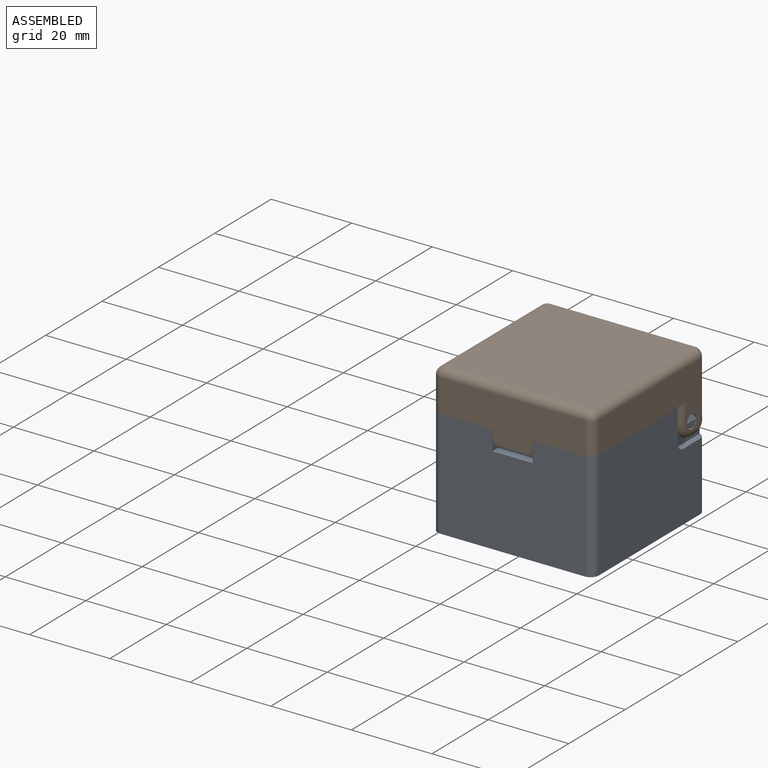
[diagram: assembled view]
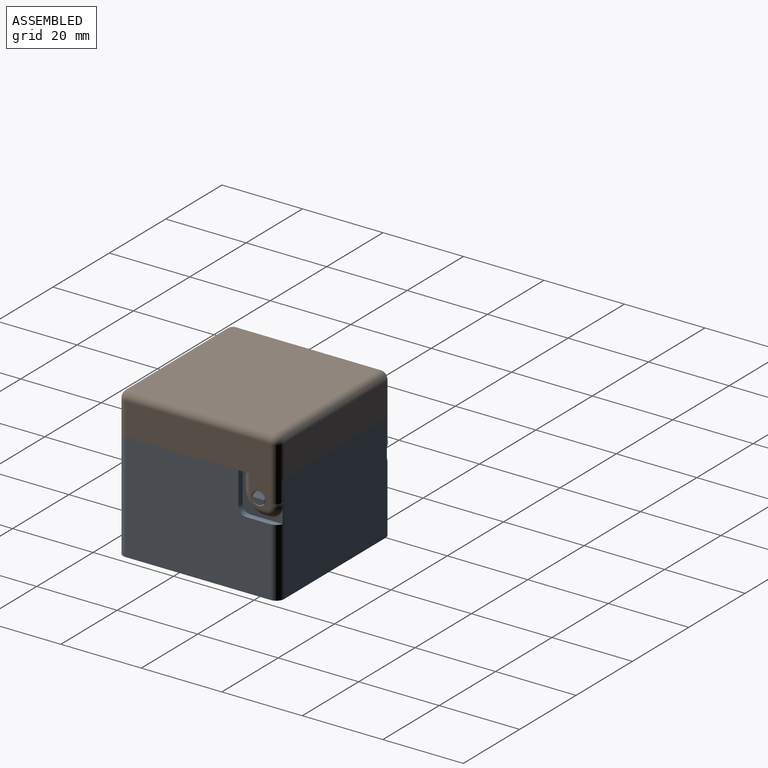
[diagram: assembled view, second angle]
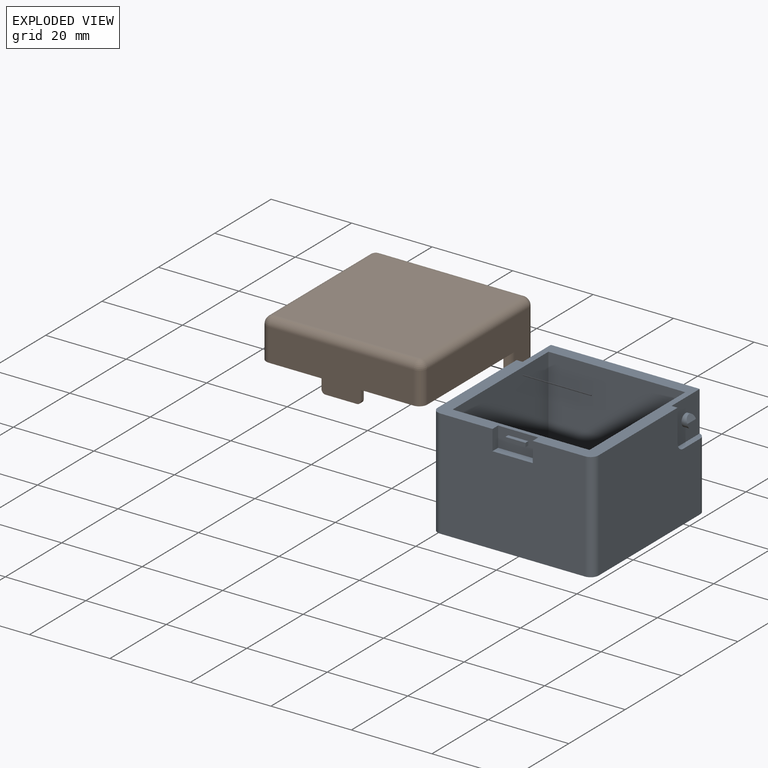
[diagram: exploded view]
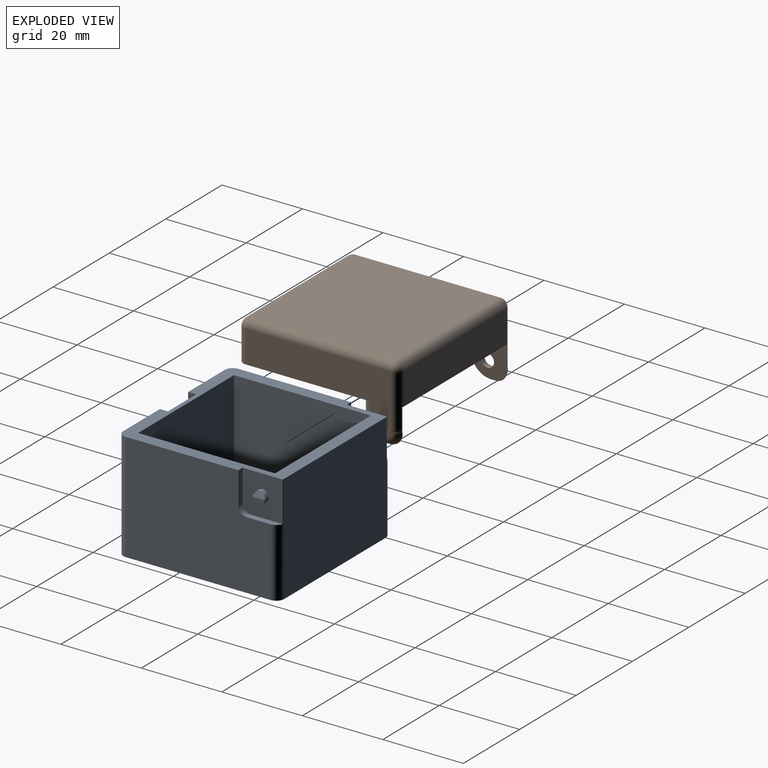
[diagram: exploded view, second angle]
ASSEMBLY  parts=2 mates=2
PART A: 38 faces, bbox 40x40x27 mm
  f0: plane 36x27mm, normal (0,-1,0), area 922mm2, adj f1,f12,f25,f26,f29,f30,f31
  f1: plane 40x40mm, normal (0,0,1), area 392.3mm2, adj f0,f4,f5,f6,f7,f8,f9,f10
  f2: cylinder r=1.5mm len=3mm, axis (1,0,0), area 12.2mm2, adj f3,f17,f19
  f3: plane 3x1.5mm, normal (-1,0,0), area 3.5mm2, adj f2,f19
  f4: plane 36x27mm, normal (-1,0,0), area 892.9mm2, adj f1,f12,f16,f18,f24,f25,f28
  f5: plane 36x27mm, normal (0,1,0), area 972mm2, adj f1,f12,f27,f28
  f6: plane 34x25mm, normal (1,0,0), area 850mm2, adj f1,f7,f10,f11
  f7: plane 34x25mm, normal (0,-1,0), area 850mm2, adj f1,f6,f8,f11
  f8: plane 34x25mm, normal (-1,0,0), area 850mm2, adj f1,f7,f10,f11
  f9: plane 36x27mm, normal (1,0,0), area 892.9mm2, adj f1,f12,f14,f15,f23,f26,f27
  f10: plane 34x25mm, normal (0,1,0), area 850mm2, adj f1,f6,f8,f11
  f11: plane 34x34mm, normal (0,0,1), area 1156mm2, adj f6,f7,f8,f10
  f12: plane 40x40mm, normal (0,0,-1), area 1596.6mm2, adj f0,f4,f5,f9,f25,f26,f27,f28
  f13: plane 10x9.94mm, normal (1,0,0), area 91.4mm2, adj f1,f14,f15,f20,f23,f27
  f14: plane 8x1.5mm, normal (0,1,0), area 12mm2, adj f1,f9,f13,f23
  f15: plane 7.94x1.5mm, normal (0,0,1), area 11.2mm2, adj f9,f13,f23,f27
  f16: plane 8x1.5mm, normal (0,1,0), area 12mm2, adj f1,f4,f17,f24
  f17: plane 10x9.94mm, normal (-1,0,0), area 91.4mm2, adj f1,f2,f16,f18,f24,f28
  f18: plane 7.94x1.5mm, normal (0,0,1), area 11.2mm2, adj f4,f17,f24,f28
  f19: plane 3x1.5mm, normal (-0.92,0,0.4), area 3.9mm2, adj f2,f3
  f20: cylinder r=1.5mm len=3mm, axis (-1,0,0), area 12.2mm2, adj f13,f21,f22
  f21: plane 3x1.5mm, normal (1,0,0), area 3.5mm2, adj f20,f22
  f22: plane 3x1.5mm, normal (0.92,0,0.4), area 3.9mm2, adj f20,f21
  f23: cylinder r=2mm len=2mm, axis (1,0,0), area 4.7mm2, adj f9,f13,f14,f15
  f24: cylinder r=2mm len=2mm, axis (1,0,0), area 4.7mm2, adj f4,f16,f17,f18
  f25: cylinder r=2mm len=27mm, axis (0,0,1), area 84.8mm2, adj f0,f1,f4,f12
  f26: cylinder r=2mm len=27mm, axis (0,0,-1), area 84.8mm2, adj f0,f1,f9,f12
  f27: cylinder r=2mm len=27mm, axis (0,0,1), area 58.5mm2, adj f1,f5,f9,f12,f13,f15
  f28: cylinder r=2mm len=27mm, axis (0,0,-1), area 58.5mm2, adj f1,f4,f5,f12,f17,f18
  f29: plane 5x2mm, normal (1,0,0), area 10mm2, adj f0,f1,f30,f32
  f30: plane 10x2mm, normal (0,0,1), area 20mm2, adj f0,f29,f31,f32
  f31: plane 5x2mm, normal (-1,0,0), area 10mm2, adj f0,f1,f30,f32
  f32: plane 10x5mm, normal (0,-1,0), area 45mm2, adj f1,f29,f30,f31,f33,f34,f35,f36
  f33: plane 5x1mm, normal (0,0,1), area 5mm2, adj f32,f34,f36,f37
  f34: plane 1x1mm, normal (-1,0,0), area 1mm2, adj f32,f33,f35,f37
  f35: plane 5x1mm, normal (0,0,-1), area 5mm2, adj f32,f34,f36,f37
  f36: plane 1x1mm, normal (1,0,0), area 1mm2, adj f32,f33,f35,f37
  f37: plane 5x1mm, normal (0,-1,0), area 5mm2, adj f33,f34,f35,f36
PART B: 48 faces, bbox 40x40x19.5 mm
  f0: plane 9.8x3.4mm, normal (0,-1,0), area 26.5mm2, adj f1,f16,f18,f19,f20,f22,f23,f24
  f1: plane 40x40mm, normal (0,0,-1), area 408.7mm2, adj f0,f2,f3,f4,f5,f7,f8,f9
  f2: plane 36.09x15.09mm, normal (-1,0,0), area 313.1mm2, adj f1,f12,f34,f40,f43,f44,f45,f46
  f3: plane 36x8mm, normal (0,-1,0), area 288mm2, adj f1,f37,f41,f43
  f4: plane 36.09x15.09mm, normal (1,0,0), area 313.1mm2, adj f1,f14,f28,f29,f30,f31,f33,f36
  f5: plane 36x11.4mm, normal (0,1,0), area 320.9mm2, adj f1,f16,f17,f18,f19,f20,f30,f34
  f6: plane 36x36mm, normal (0,0,1), area 1296mm2, adj f35,f36,f40,f41
  f7: plane 34x7mm, normal (1,0,0), area 238mm2, adj f1,f8,f10,f11
  f8: plane 34x7mm, normal (0,1,0), area 238mm2, adj f1,f7,f9,f11
  f9: plane 34x7mm, normal (-1,0,0), area 238mm2, adj f1,f8,f10,f11
  f10: plane 34x7mm, normal (0,-1,0), area 238mm2, adj f1,f7,f9,f11
  f11: plane 34x34mm, normal (0,0,-1), area 1156mm2, adj f7,f8,f9,f10
  f12: cylinder r=1.67mm len=3.35mm, axis (-1,0,0), area 14.7mm2, adj f2,f13
  f13: plane 9x9mm, normal (1,0,0), area 64.4mm2, adj f1,f12,f43,f44,f45,f46,f47
  f14: cylinder r=1.67mm len=3.35mm, axis (1,0,0), area 14.7mm2, adj f4,f15
  f15: plane 9x9mm, normal (-1,0,0), area 64.4mm2, adj f1,f14,f28,f29,f31,f33,f37
  f16: plane 2.4x1mm, normal (1,0,0), area 2.4mm2, adj f0,f1,f5,f19
  f17: plane 8x1.5mm, normal (0,0,-1), area 11.8mm2, adj f5,f19,f20,f21,f22,f23,f26,f27
  f18: plane 2.4x1mm, normal (-1,0,0), area 2.4mm2, adj f0,f1,f5,f20
  f19: cylinder r=1mm len=1mm, axis (0,1,0), area 1.6mm2, adj f0,f5,f16,f17,f26
  f20: cylinder r=1mm len=1mm, axis (0,-1,0), area 1.6mm2, adj f0,f5,f17,f18,f21
  f21: plane 0.1x0.01mm, normal (0,1,0), area 0mm2, adj f17,f20,f22
  f22: plane 1x0.8mm, normal (-1,0,0), area 0.7mm2, adj f0,f17,f21,f24,f25,f27
  f23: plane 1x0.8mm, normal (1,0,0), area 0.7mm2, adj f0,f17,f24,f25,f26,f27
  f24: plane 8x1mm, normal (0,0,1), area 8mm2, adj f0,f22,f23,f25
  f25: plane 8x0.3mm, normal (0,-1,0), area 2.4mm2, adj f22,f23,f24,f27
  f26: plane 0.1x0.01mm, normal (0,1,0), area 0mm2, adj f17,f19,f23
  f27: plane 8x0.5mm, normal (0,-0.71,-0.71), area 5.7mm2, adj f17,f22,f23,f25
  f28: cylinder r=2mm len=4mm, axis (0,0,1), area 10.1mm2, adj f1,f4,f15,f29
  f29: torus R=3.09mm, axis (1,0,0), area 16.7mm2, adj f4,f15,f28,f31
  f30: cylinder r=2mm len=8mm, axis (0,0,1), area 25.1mm2, adj f1,f4,f5,f32
  f31: cylinder r=2mm len=1.91mm, axis (0,-1,0), area 2.5mm2, adj f4,f15,f29,f33
  f32: sphere r=2mm, area 6.3mm2, adj f30,f35,f36
  f33: torus R=1.09mm, axis (1,0,0), area 10.3mm2, adj f4,f15,f31,f37
  f34: cylinder r=2mm len=8mm, axis (0,0,-1), area 25.1mm2, adj f1,f2,f5,f38
  f35: cylinder r=2mm len=36mm, axis (1,0,0), area 113.1mm2, adj f5,f6,f32,f38
  f36: cylinder r=2mm len=36mm, axis (0,-1,0), area 113.1mm2, adj f4,f6,f32,f39
  f37: cylinder r=2mm len=13.56mm, axis (0,0,-1), area 38.7mm2, adj f1,f3,f4,f15,f33,f39
  f38: sphere r=2mm, area 6.3mm2, adj f34,f35,f40
  f39: sphere r=2mm, area 6.3mm2, adj f36,f37,f41
  f40: cylinder r=2mm len=36mm, axis (0,1,0), area 113.1mm2, adj f2,f6,f38,f42
  f41: cylinder r=2mm len=36mm, axis (-1,0,0), area 113.1mm2, adj f3,f6,f39,f42
  f42: sphere r=2mm, area 6.3mm2, adj f40,f41,f43
  f43: cylinder r=2mm len=13.56mm, axis (0,0,1), area 38.7mm2, adj f1,f2,f3,f13,f42,f44
  f44: torus R=1.09mm, axis (1,0,0), area 10.3mm2, adj f2,f13,f43,f45
  f45: cylinder r=2mm len=1.91mm, axis (0,-1,0), area 2.5mm2, adj f2,f13,f44,f46
  f46: torus R=3.09mm, axis (1,0,0), area 16.7mm2, adj f2,f13,f45,f47
  f47: cylinder r=2mm len=4mm, axis (0,0,1), area 10.1mm2, adj f1,f2,f13,f46
PLACE A t=(-20.17,-54,33.14)mm
PLACE B rot(axis=(0,0,-1),180deg) t=(19.83,-14,58.14)mm
MATE parallel A.f4 <-> B.f4  axis (-1,0,0) through (-20.17,-35.25,43.89)mm
MATE slider A.f2 <-> B.f12  axis (-1,0,0) through (18.33,-19,53.14)mm
